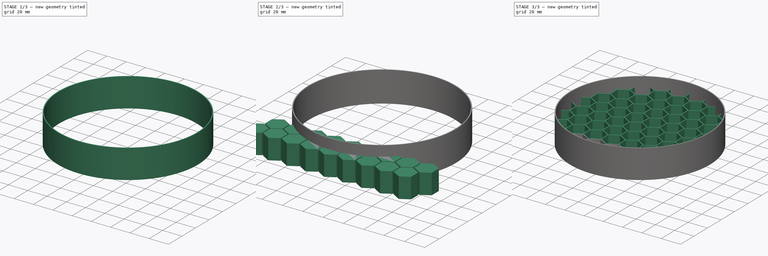
[diagram: build sequence overview — one tinted view per stage of 3, left to right]
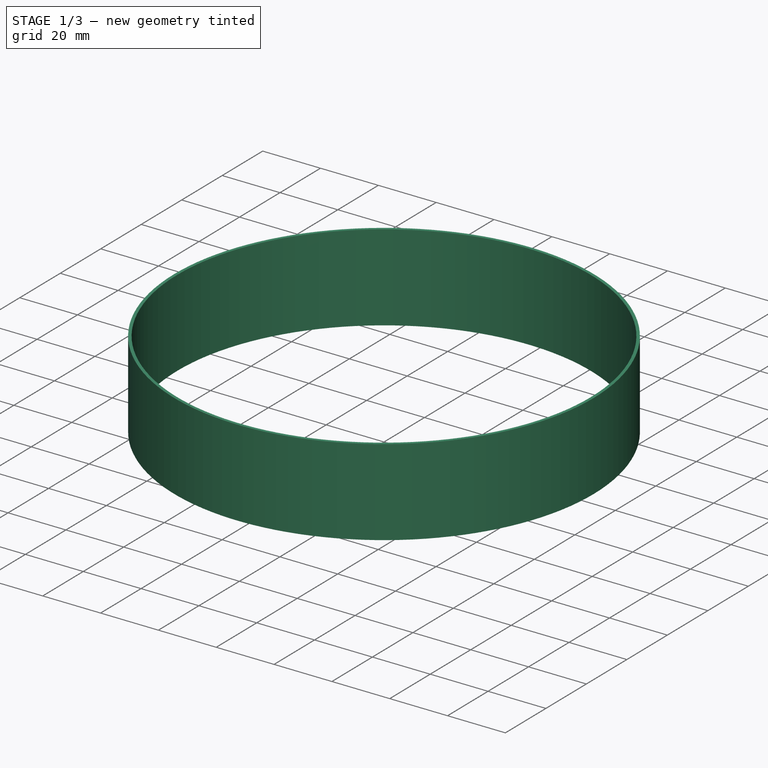
[diagram: stage 1 of 3 — iso view after this stage's code; geometry added in this stage tinted green]
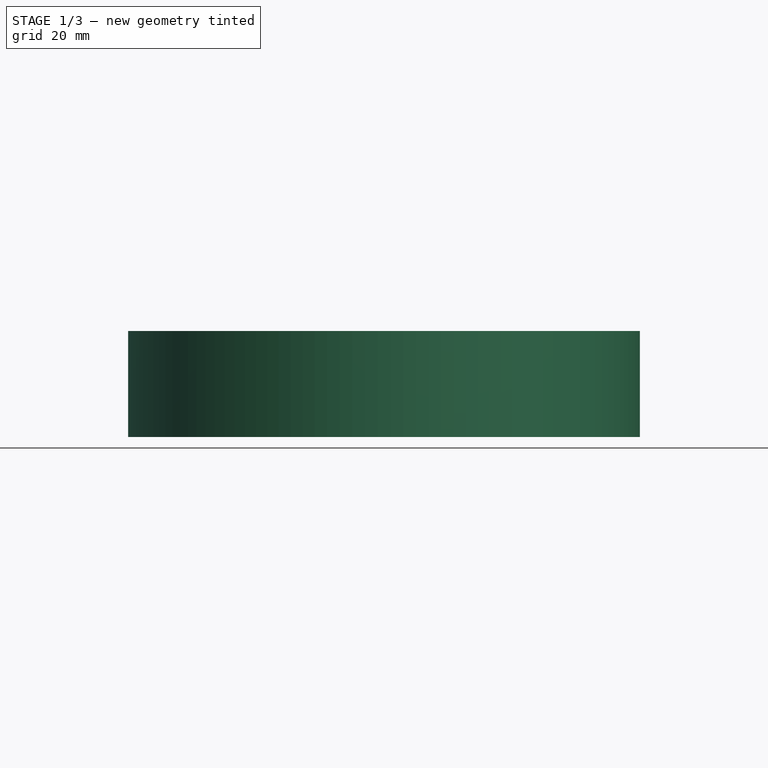
[diagram: stage 1 of 3 — front view after this stage's code; geometry added in this stage tinted green]
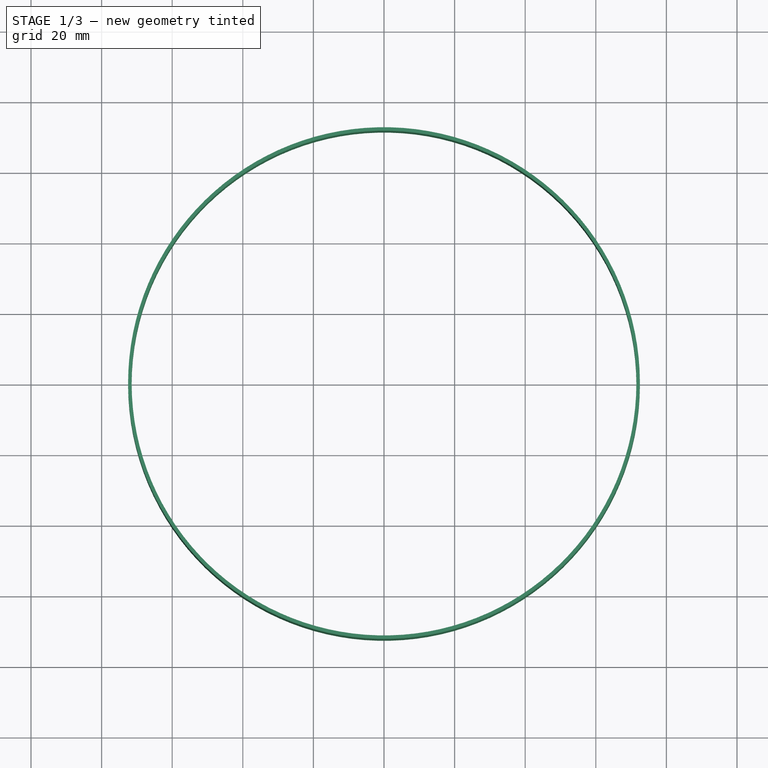
[diagram: stage 1 of 3 — top view after this stage's code; geometry added in this stage tinted green]
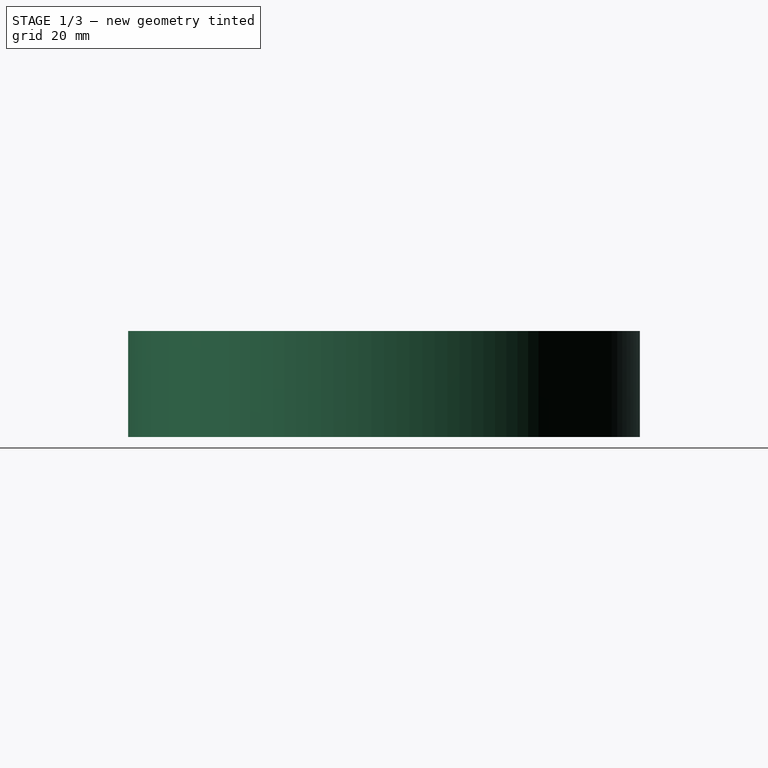
[diagram: stage 1 of 3 — right view after this stage's code; geometry added in this stage tinted green]
FCSTD DOCUMENT  (FreeCAD 0.16RUnknown)
Label: hexagon-3d
License: All rights reserved
LicenseURL: http://en.wikipedia.org/wiki/All_rights_reserved
objects: Part::Cylinder×3, Part::FeaturePython×2, Part::Cut×2, Spreadsheet::Sheet×1, Sketcher::SketchObject×1, PartDesign::Pad×1
note: 10 computed .brp shape members not serialized (recipe doc carries the construction recipe); baked Part::Feature solids carry a one-line shape summary decoded from their .brp

FEATURE [Part::Cylinder] Cylinder
  Angle = 360
  Height = 30
  Radius = 72.5
  expr: Height = param.space + param.thickness
  expr: Radius = param.big
FEATURE [Part::Cylinder] Cylinder002
  Angle = 360
  Height = 30
  Radius = 71.5
  expr: Height = param.space + param.thickness
  expr: Radius = param.big - param.wall
FEATURE [Part::Cut] Cut001  label="spacer"
  Base = -> Cylinder
  Tool = -> Cylinder002
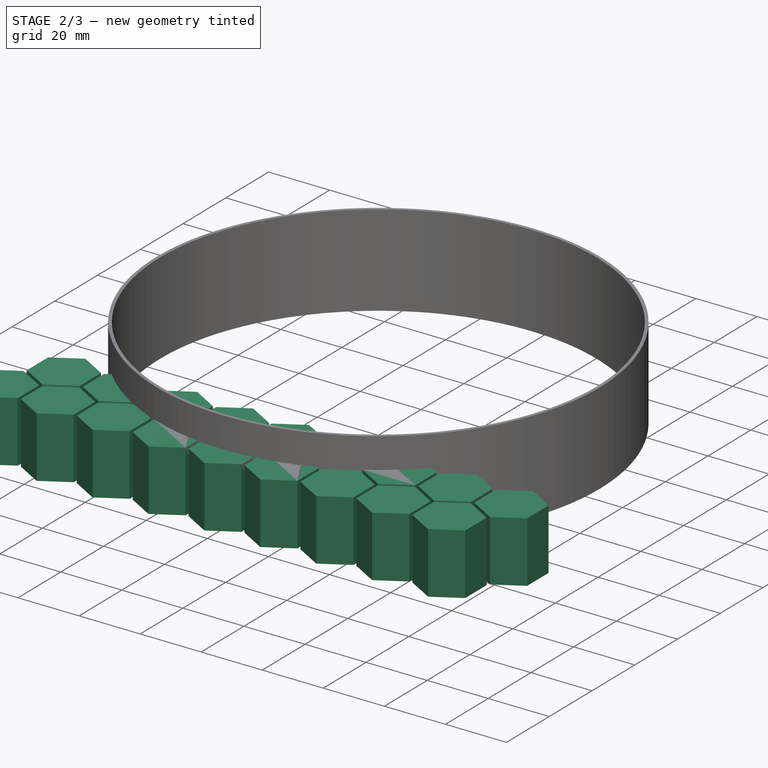
[diagram: stage 2 of 3 — iso view after this stage's code; geometry added in this stage tinted green]
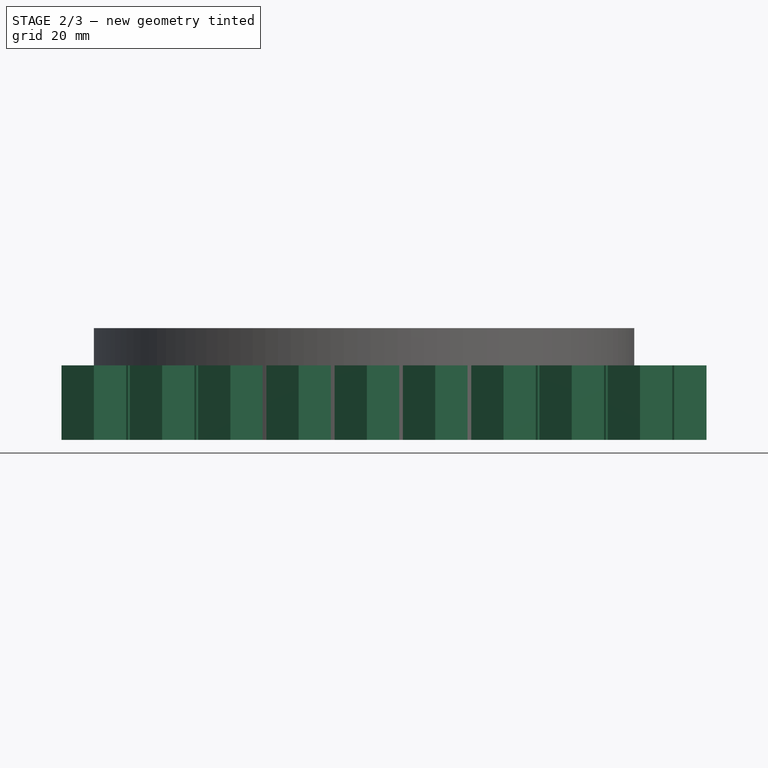
[diagram: stage 2 of 3 — front view after this stage's code; geometry added in this stage tinted green]
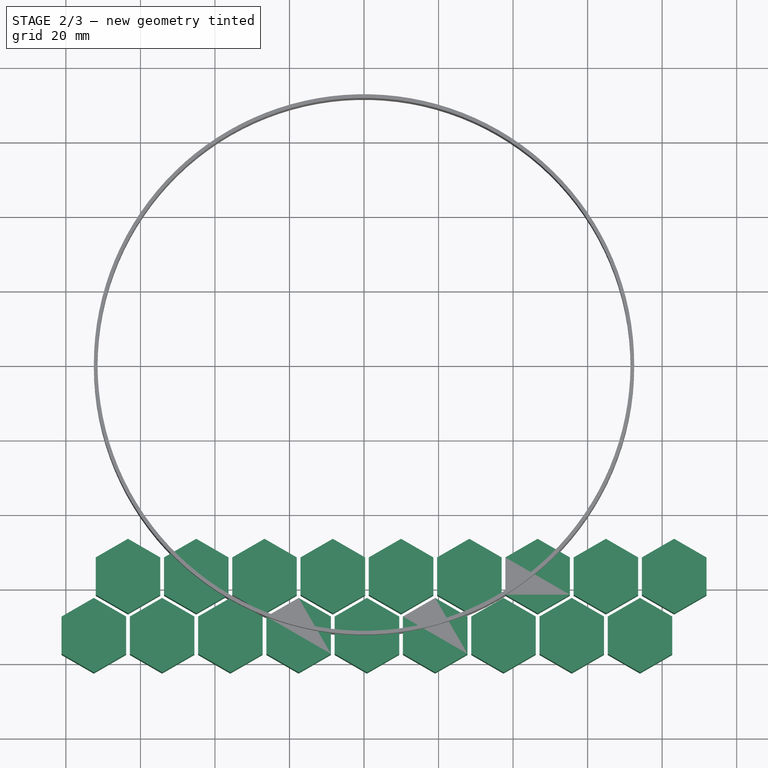
[diagram: stage 2 of 3 — top view after this stage's code; geometry added in this stage tinted green]
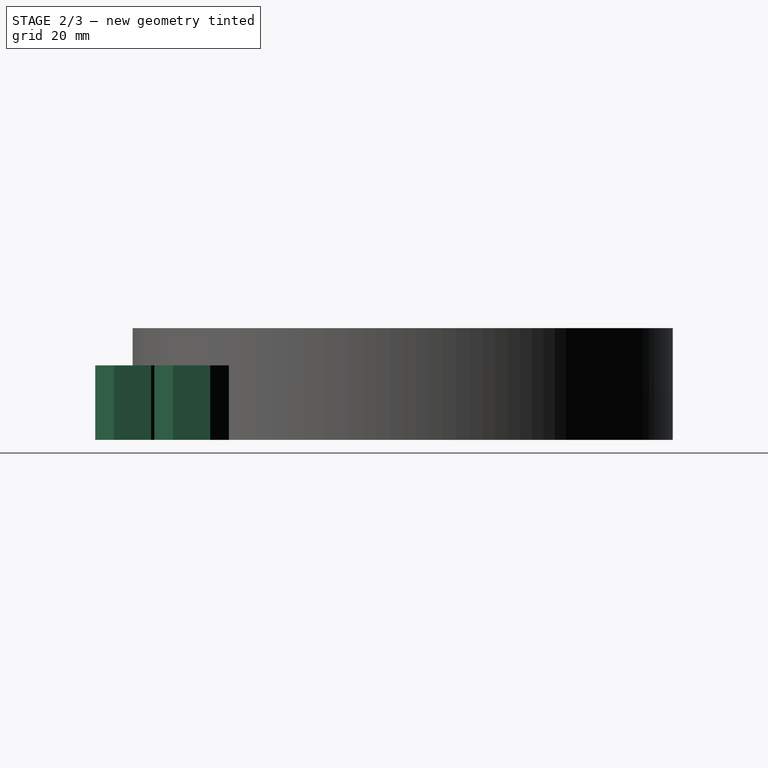
[diagram: stage 2 of 3 — right view after this stage's code; geometry added in this stage tinted green]
FEATURE [PartDesign::Pad] Pad
  Length = 20
  Length2 = 100
  Sketch = -> Sketch
  Type = 0
  expr: Length = param.thickness
FEATURE [Part::FeaturePython] Array  # Draft array (typed FeaturePython)
  Angle = 360
  ArrayType = 0
  Axis = (0,0,1)
  Base = -> Pad
  Center = (0,0,0)
  Fuse = false
  IntervalAxis = (0,0,0)
  IntervalX = (18.3205,0,0)
  IntervalY = (9.16025,15.866,0)
  IntervalZ = (0,0,0)
  NumberPolar = 1
  NumberX = 9
  NumberY = 2
  NumberZ = 1
  expr: NumberX = param.hreplicate
  expr: IntervalY.y = param.vdistance
  expr: IntervalY.x = param.hdistance / 2
  expr: IntervalX.x = param.hdistance
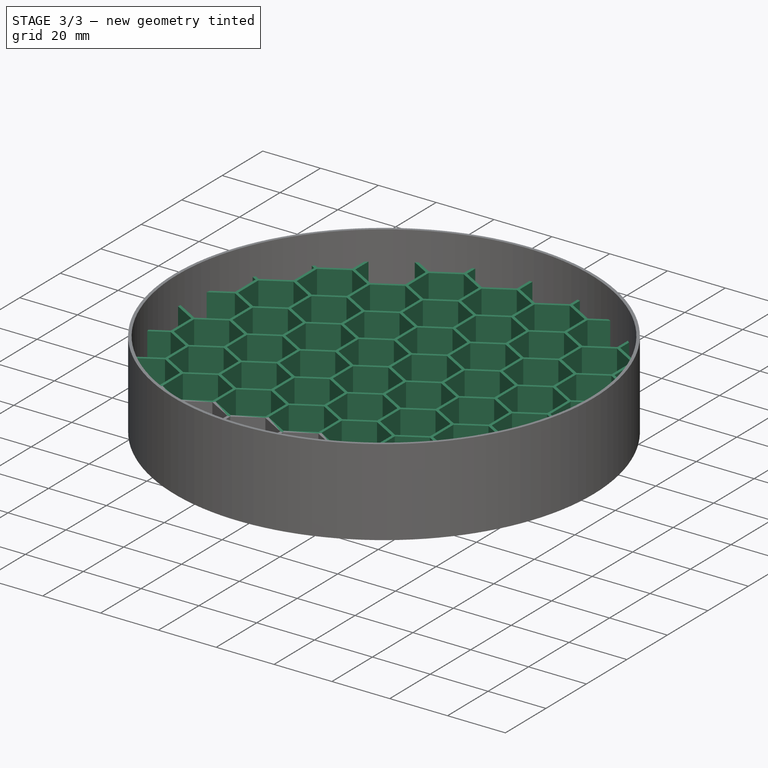
[diagram: stage 3 of 3 — iso view after this stage's code; geometry added in this stage tinted green]
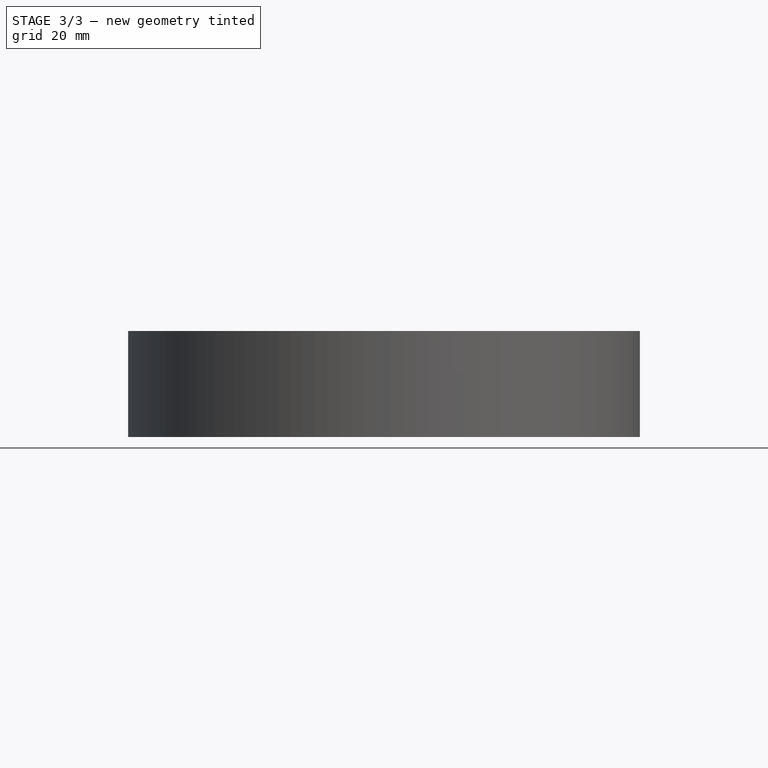
[diagram: stage 3 of 3 — front view after this stage's code; geometry added in this stage tinted green]
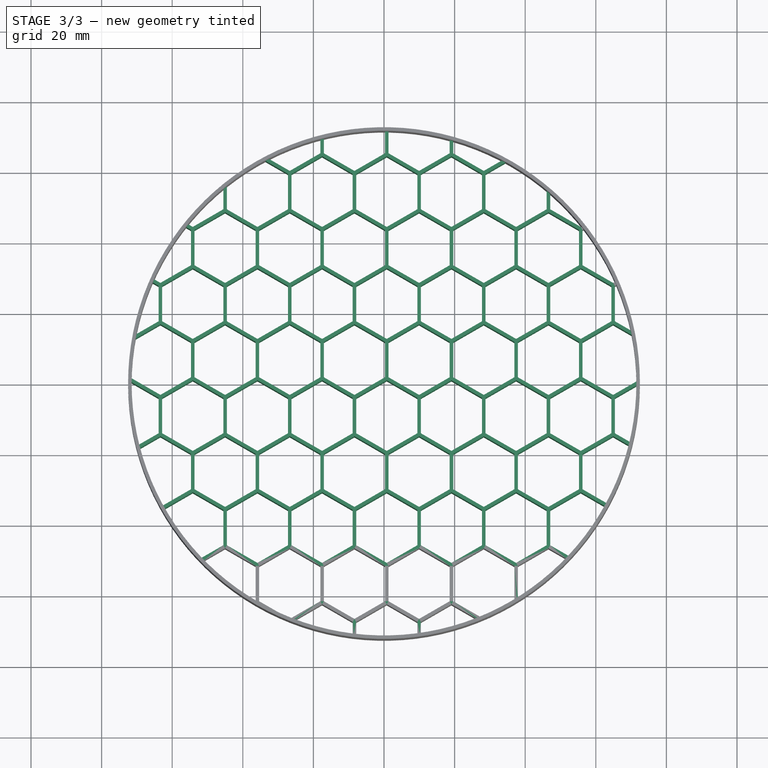
[diagram: stage 3 of 3 — top view after this stage's code; geometry added in this stage tinted green]
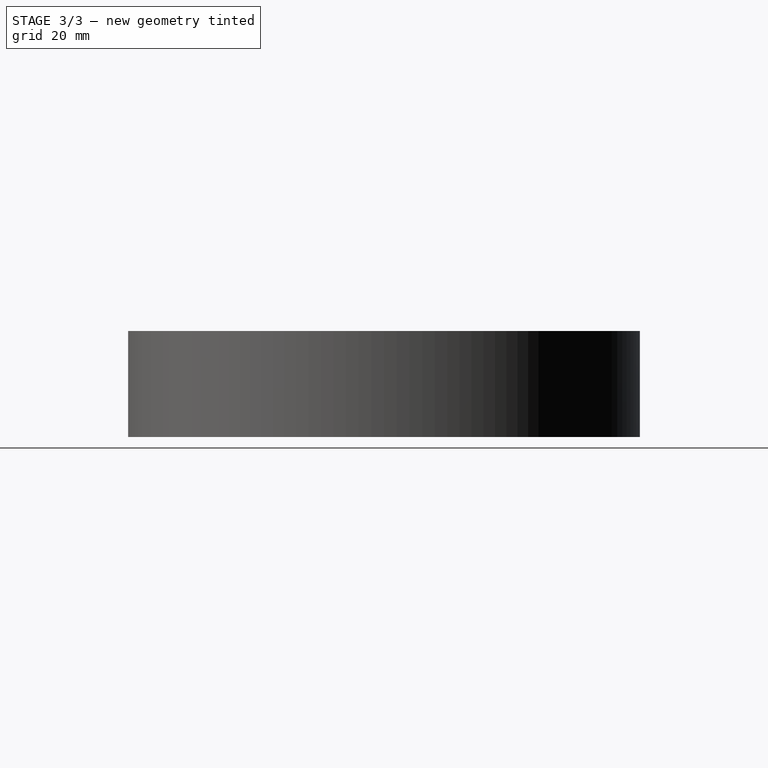
[diagram: stage 3 of 3 — right view after this stage's code; geometry added in this stage tinted green]
FEATURE [Spreadsheet::Sheet] Spreadsheet  label="param"
  cells = A1=radius; B1(radius)=10; C1=mm; A2=factor; B2(factor)=3; A3=replicate; B3(replicate)==param.big / param.vdistance * 2; A4=big; B4(big)=72.5; C4=mm; A5=thickness; B5(thickness)=20; C5=mm; A6=space; B6(space)=10; C6=mm; A7=wall; B7(wall)=1; C7=mm; A8=distance; B8(distance)=1; C8=mm; A9=hdistance; B9(hdistance)==radius * cos(30) * 2 + distance; A10=vdistance; B10(vdistance)==sqrt(param.hdistance * param.hdistance * 3 / 4); A11=hreplicate; B11(hreplicate)==param.big * 2 / param.hdistance + 1; A12=vreplicate; B12(vreplicate)==param.big / param.vdistance + 1; A13=hcenter; B13(hcenter)==param.big + 20; A14=vcenter; B14(vcenter)==param.big * 2 + 60
FEATURE [Sketcher::SketchObject] Sketch  label="hexagon"
  expr: Constraints[19] = -param.big - param.radius
  expr: Constraints[18] = param.big
  expr: Constraints[12] = param.radius
  sketch-geometry (6):
    g0: LineSegment StartX=-81.1603 StartY=-67.5 StartZ=0 EndX=-81.1603 EndY=-77.5 EndZ=0
    g1: LineSegment StartX=-81.1603 StartY=-77.5 StartZ=0 EndX=-72.5 EndY=-82.5 EndZ=0
    g2: LineSegment StartX=-72.5 StartY=-82.5 StartZ=0 EndX=-63.8397 EndY=-77.5 EndZ=0
    g3: LineSegment StartX=-63.8397 StartY=-77.5 StartZ=0 EndX=-63.8397 EndY=-67.5 EndZ=0
    g4: LineSegment StartX=-63.8397 StartY=-67.5 StartZ=0 EndX=-72.5 EndY=-62.5 EndZ=0
    g5: LineSegment StartX=-72.5 StartY=-62.5 StartZ=0 EndX=-81.1603 EndY=-67.5 EndZ=0
  constraints (20):
    c: Coincident(g0,g1)
    c: Coincident(g1,g2)
    c: Coincident(g2,g3)
    c: Vertical(g3)
    c: Coincident(g3,g4)
    c: Coincident(g4,g5)
    c: Coincident(g5,g0)
    c: Angle(g5,g4) = 2.0944
    c: Angle(g4,g3) = 2.0944
    c: Angle(g3,g2) = 2.0944
    c: Angle(g2,g1) = 2.0944
    c: Angle(g1,g0) = 2.0944
    c: Distance(g5) = 10
    c: Equal(g5,g0)
    c: Equal(g5,g4)
    c: Equal(g4,g3)
    c: Equal(g2,g1)
    c: Equal(g0,g1)
    c: DistanceX(g1,g-1) = 72.5
    c: DistanceY(g-1,g1) = -82.5
FEATURE [Part::Cylinder] Cylinder001  label="big"
  Angle = 360
  Height = 20
  Radius = 71.5
  expr: Radius = param.big - param.wall
  expr: Height = param.thickness
FEATURE [Part::FeaturePython] Array004  label="holes"  # Draft array (typed FeaturePython)
  Angle = 360
  ArrayType = 0
  Axis = (0,0,1)
  Base = -> Array
  Center = (0,0,0)
  Fuse = false
  IntervalAxis = (0,0,0)
  IntervalX = (1,0,0)
  IntervalY = (0,31.7321,0)
  IntervalZ = (0,0,0)
  NumberPolar = 1
  NumberX = 1
  NumberY = 6
  NumberZ = 1
  expr: NumberY = param.vreplicate
  expr: IntervalY.y = param.vdistance * 2
FEATURE [Part::Cut] Cut
  Base = -> Cylinder001
  Tool = -> Array004
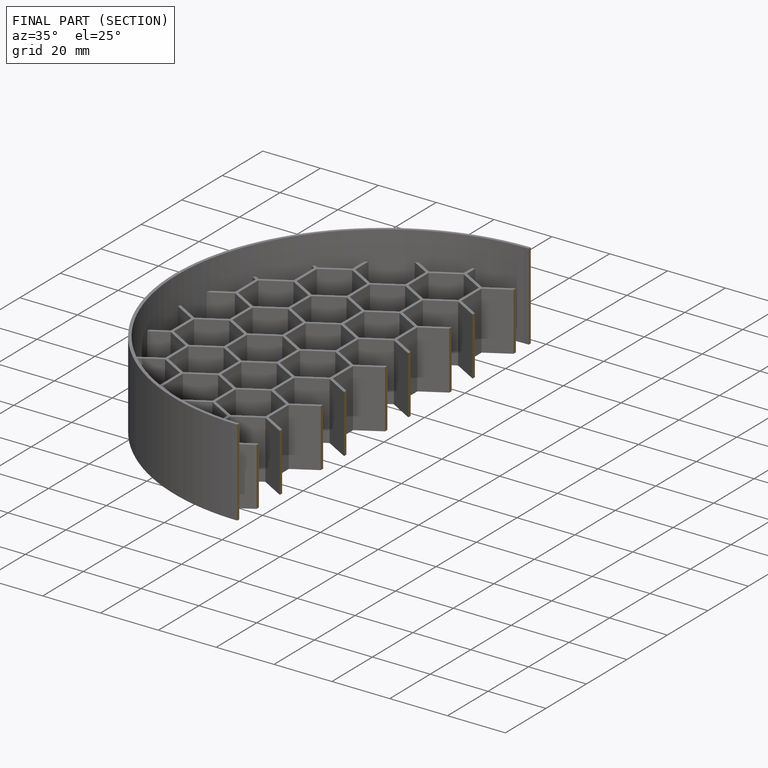
[diagram: finished part — half-section view (interior)]
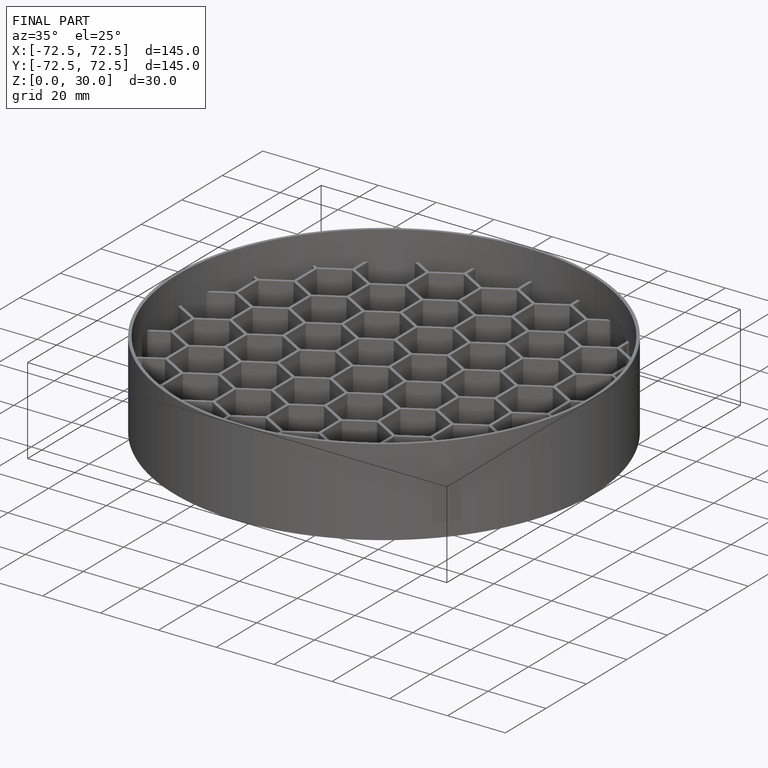
[diagram: finished part — iso view with bounding-box wireframe]
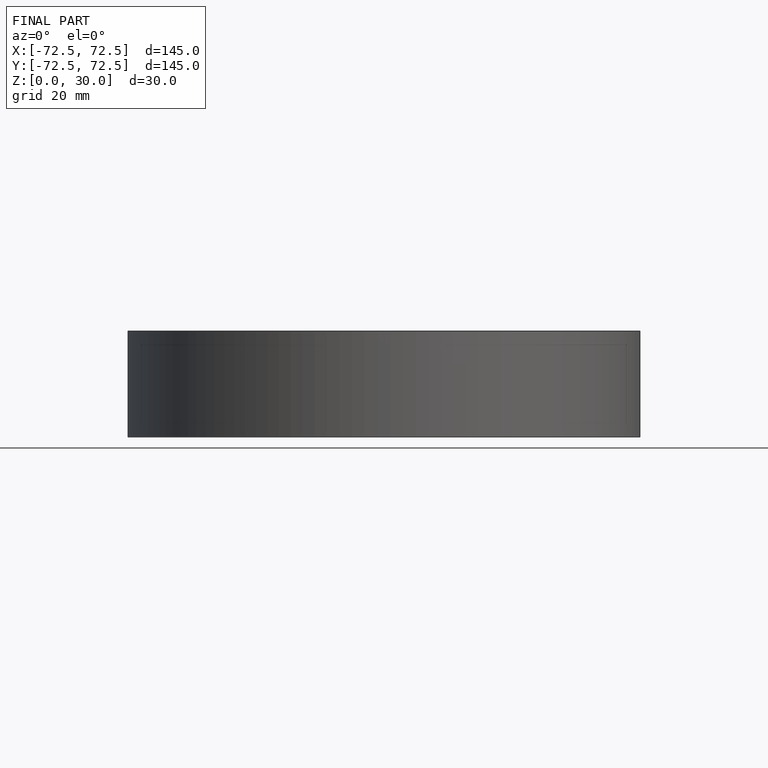
[diagram: finished part — front view with bounding-box wireframe]
